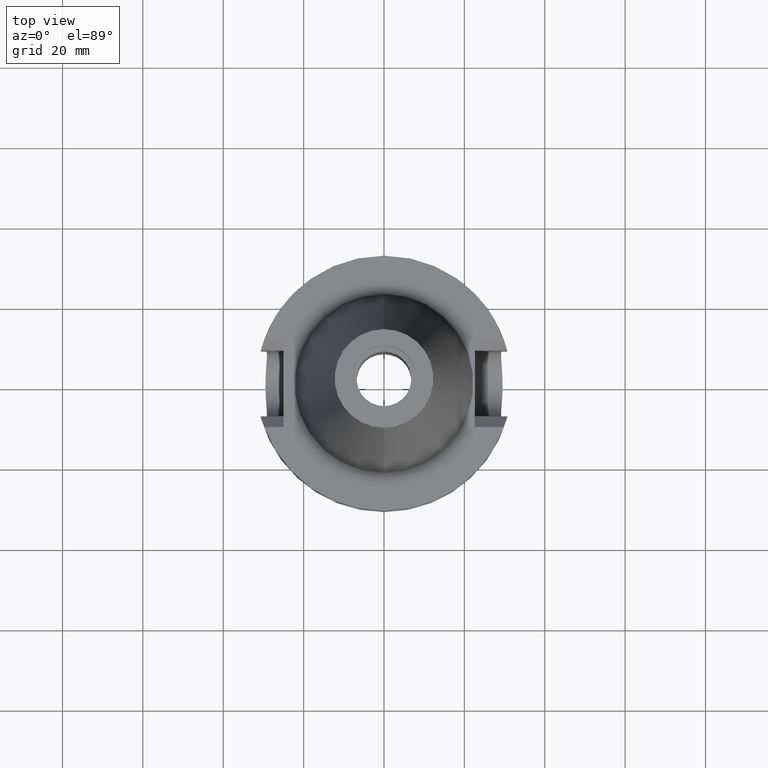
[diagram: clean part render]
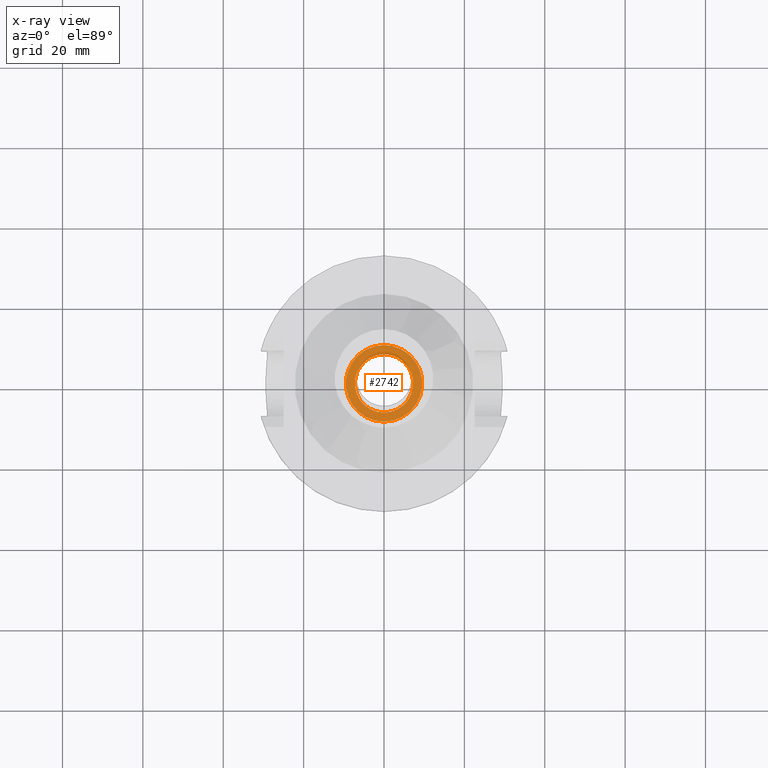
[diagram: x-ray — body ghosted, one internal face saturated and labeled with its STEP entity id]
A machine part, top view, then the same camera in x-ray: the body is ghosted and one INTERNAL B-rep face — a face not visible from any outside direction — is saturated and labeled: STEP entity #2742.
In plain terms, the highlighted planar face has unit normal (0, 0, -1).
Its self-contained STEP definition (entity closure, byte-faithful):
#1343=CARTESIAN_POINT('',(0.E0,2.157919508608E-14,-3.9E0));
#1344=DIRECTION('',(0.E0,0.E0,1.E0));
#1345=DIRECTION('',(0.E0,-1.E0,0.E0));
#1346=AXIS2_PLACEMENT_3D('',#1343,#1344,#1345);
#1351=CARTESIAN_POINT('',(0.E0,2.157919508608E-14,-3.9E0));
#1352=DIRECTION('',(0.E0,0.E0,1.E0));
#1353=DIRECTION('',(0.E0,1.E0,0.E0));
#1354=AXIS2_PLACEMENT_3D('',#1351,#1352,#1353);
#1359=CARTESIAN_POINT('',(0.E0,2.157919508608E-14,-3.9E0));
#1360=DIRECTION('',(0.E0,0.E0,-1.E0));
#1361=DIRECTION('',(0.E0,-1.E0,0.E0));
#1362=AXIS2_PLACEMENT_3D('',#1359,#1360,#1361);
#1367=CARTESIAN_POINT('',(0.E0,2.157919508608E-14,-3.9E0));
#1368=DIRECTION('',(0.E0,0.E0,-1.E0));
#1369=DIRECTION('',(0.E0,1.E0,0.E0));
#1370=AXIS2_PLACEMENT_3D('',#1367,#1368,#1369);
#1539=CARTESIAN_POINT('',(0.E0,7.25E0,-3.9E0));
#1540=VERTEX_POINT('',#1539);
#1541=CARTESIAN_POINT('',(0.E0,-7.25E0,-3.9E0));
#1542=VERTEX_POINT('',#1541);
#1543=CARTESIAN_POINT('',(0.E0,-9.525E0,-3.9E0));
#1544=CARTESIAN_POINT('',(0.E0,9.525E0,-3.9E0));
#1545=VERTEX_POINT('',#1543);
#1546=VERTEX_POINT('',#1544);
#2727=CARTESIAN_POINT('',(0.E0,1.176885573981E-14,-3.9E0));
#2728=DIRECTION('',(0.E0,0.E0,-1.E0));
#2729=DIRECTION('',(0.E0,-1.E0,0.E0));
#2730=AXIS2_PLACEMENT_3D('',#2727,#2728,#2729);
#2731=PLANE('',#2730);
#2732=ORIENTED_EDGE('',*,*,#2720,.T.);
#2733=ORIENTED_EDGE('',*,*,#2709,.T.);
#2734=EDGE_LOOP('',(#2732,#2733));
#2735=FACE_OUTER_BOUND('',#2734,.F.);
#2737=ORIENTED_EDGE('',*,*,#2736,.T.);
#2739=ORIENTED_EDGE('',*,*,#2738,.T.);
#2740=EDGE_LOOP('',(#2737,#2739));
#2741=FACE_BOUND('',#2740,.F.);
#1347=CIRCLE('',#1346,9.525E0);
#1355=CIRCLE('',#1354,9.525E0);
#1363=CIRCLE('',#1362,7.25E0);
#1371=CIRCLE('',#1370,7.25E0);
#2709=EDGE_CURVE('',#1546,#1545,#1355,.T.);
#2720=EDGE_CURVE('',#1545,#1546,#1347,.T.);
#2736=EDGE_CURVE('',#1542,#1540,#1363,.T.);
#2738=EDGE_CURVE('',#1540,#1542,#1371,.T.);
#2742=ADVANCED_FACE('',(#2735,#2741),#2731,.T.);